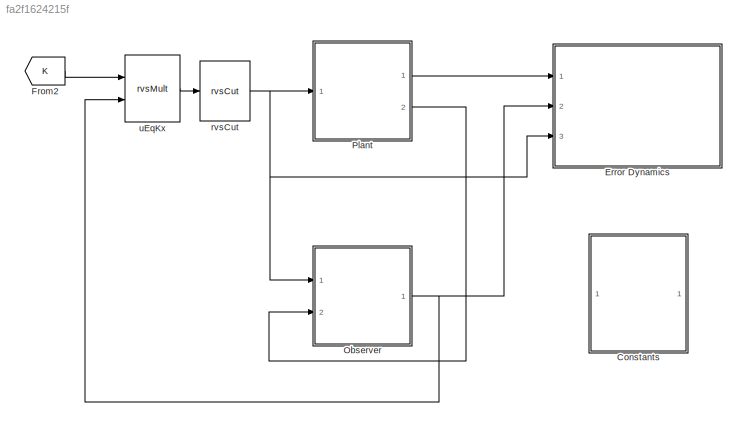
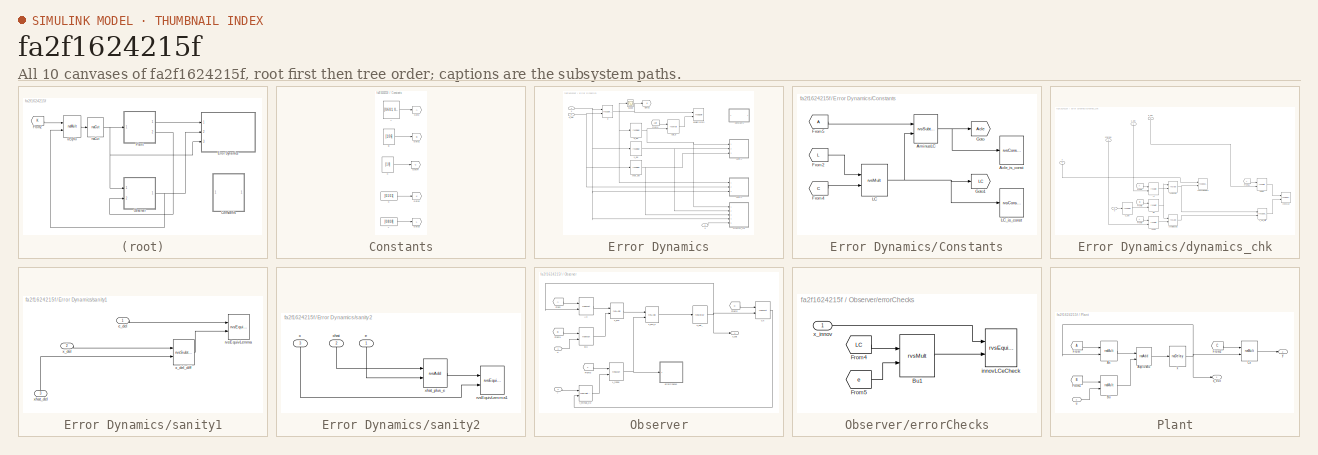
[diagram: thumbnail index - all 10 canvases of the model, root first then tree order]
MODEL slx_fa2f1624215f
KIND model
CONFIG AbsTol = auto
CONFIG FixedStep = auto
CONFIG MaxStep = auto
CONFIG MinStep = auto
CONFIG RelTol = 1e-3
CONFIG SampleTimeConstraint = Unconstrained
CONFIG Solver = FixedStepDiscrete
CONFIG SolverMode = Auto
CONFIG SolverName = FixedStepDiscrete
CONFIG StartTime = 0.0
CONFIG StopTime = 10.0
BLOCK [SubSystem] Constants
  Ports = []
  RequestExecContextInheritance = off
  Variant = off
BLOCK [Constant] Constants/A
  Value = [0.6 0.1; 0.0 0.5]
BLOCK [Constant] Constants/B
  Value = [1;0.6]
  VectorParams1D = off
BLOCK [Constant] Constants/C
  Value = [1 0]
  VectorParams1D = off
BLOCK [Goto] Constants/Goto
  TagVisibility = global
BLOCK [Goto] Constants/Goto1
  GotoTag = B
  TagVisibility = global
BLOCK [Goto] Constants/Goto2
  GotoTag = K
  TagVisibility = global
BLOCK [Goto] Constants/Goto3
  GotoTag = L
  TagVisibility = global
BLOCK [Goto] Constants/Goto4
  GotoTag = C
  TagVisibility = global
BLOCK [Constant] Constants/K
  Value = [0.1 0.1]
  VectorParams1D = off
BLOCK [Constant] Constants/L
  Value = [0.8;0.8]
  VectorParams1D = off
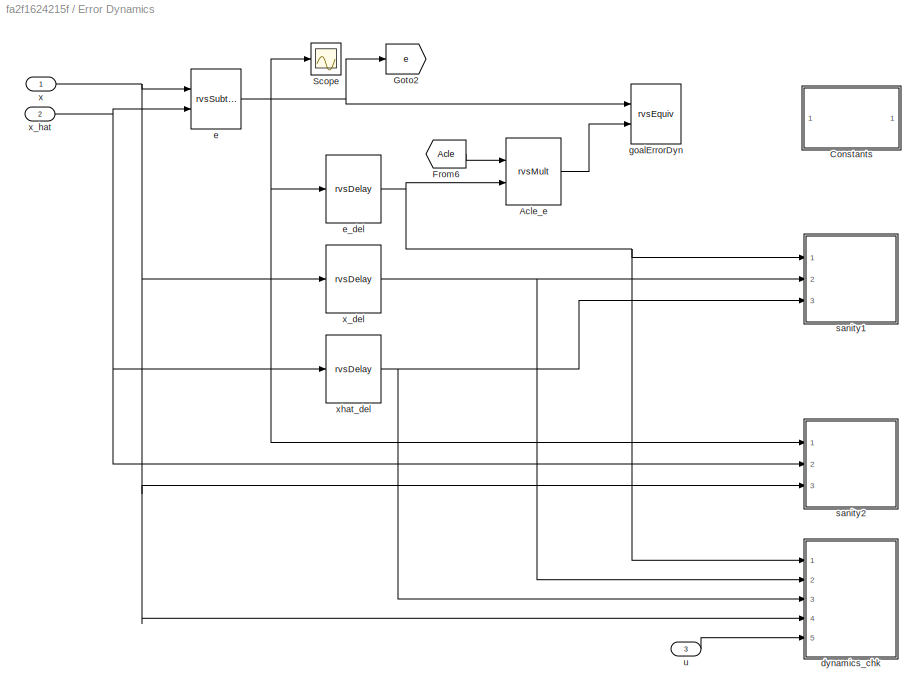
BLOCK [SubSystem] Error Dynamics
  Ports = [3]
  RequestExecContextInheritance = off
  Variant = off
BLOCK [Reference] Error Dynamics/Acle_e  REF=rvs/rvsMult  (lib defined in slx_4df59143a37a)
  Ports = [2, 1]
  SourceBlock = rvs/rvsMult
  SourceType = rvsMult
BLOCK [SubSystem] Error Dynamics/Constants
  Ports = []
  RequestExecContextInheritance = off
  Variant = off
BLOCK [Reference] Error Dynamics/Constants/Acle_is_const  REF=rvs/rvsConstant  (lib defined in slx_4df59143a37a)
  Ports = [1]
  SourceBlock = rvs/rvsConstant
  SourceType = rvsConstant
BLOCK [Reference] Error Dynamics/Constants/AminusLC  REF=rvs/rvsSubtract  (lib defined in slx_4df59143a37a)
  Ports = [2, 1]
  SourceBlock = rvs/rvsSubtract
  SourceType = rvsSubtract
BLOCK [From] Error Dynamics/Constants/From2
  GotoTag = L
  TagVisibility = global
BLOCK [From] Error Dynamics/Constants/From4
  GotoTag = C
  TagVisibility = global
BLOCK [From] Error Dynamics/Constants/From5
  TagVisibility = global
BLOCK [Goto] Error Dynamics/Constants/Goto
  GotoTag = Acle
  TagVisibility = global
BLOCK [Goto] Error Dynamics/Constants/Goto1
  GotoTag = LC
  TagVisibility = global
BLOCK [Reference] Error Dynamics/Constants/LC  REF=rvs/rvsMult  (lib defined in slx_4df59143a37a)
  Ports = [2, 1]
  SourceBlock = rvs/rvsMult
  SourceType = rvsMult
BLOCK [Reference] Error Dynamics/Constants/LC_is_const  REF=rvs/rvsConstant  (lib defined in slx_4df59143a37a)
  Ports = [1]
  SourceBlock = rvs/rvsConstant
  SourceType = rvsConstant
BLOCK [From] Error Dynamics/From6
  GotoTag = Acle
  TagVisibility = global
BLOCK [Goto] Error Dynamics/Goto2
  GotoTag = e
  TagVisibility = global
BLOCK [Scope] Error Dynamics/Scope
  Ports = [1]
  ScopeSpecificationString = Simulink.scopes.TimeScopeBlockCfg('CurrentConfiguration', extmgr.ConfigurationSet(extmgr.Configuration('Core','General UI',true),extmgr.Configuration('Core','Source UI',true),extmgr.Configuration('Sources','WiredSimulink',true),extmgr.Configuration('Visuals','Time Domain',true,'SerializedDisplays',{struct('MinYLimReal','-1.775','MaxYLimReal','0.975','YLabelReal','','MinYLimMag','0.00000','MaxYLimM...<+1344ch>
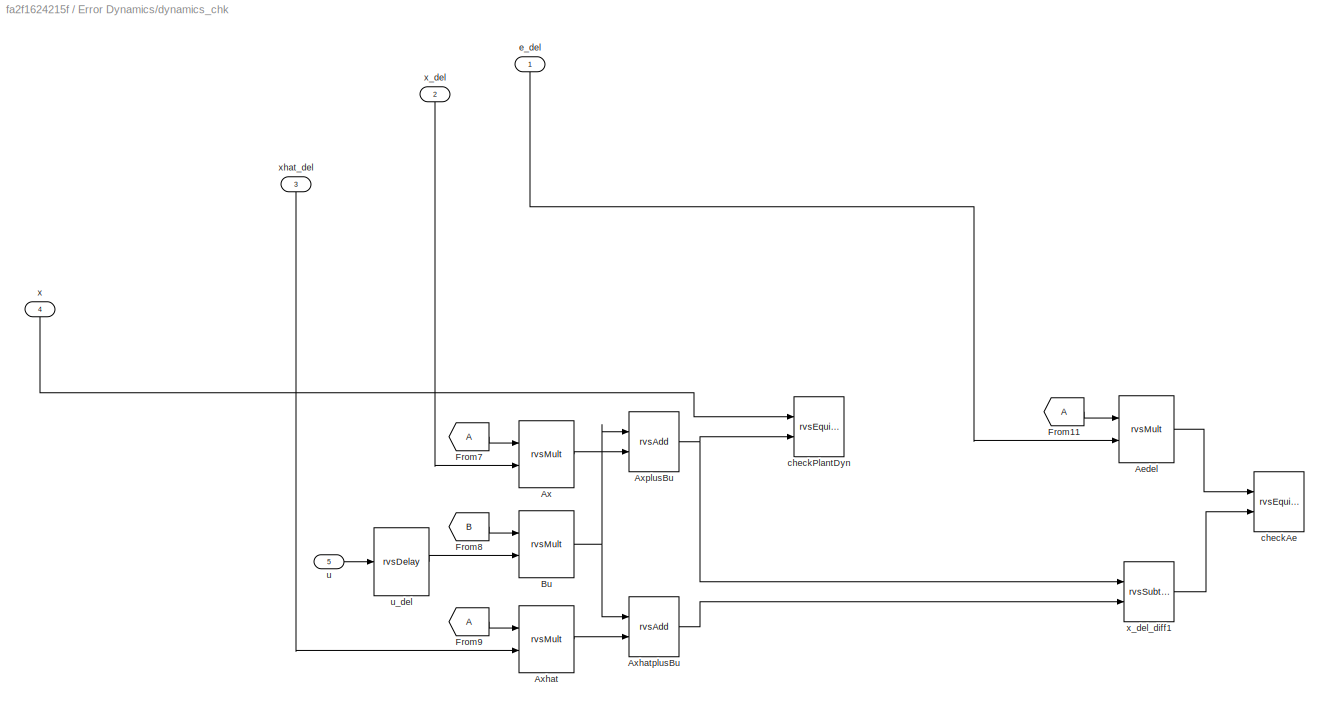
BLOCK [SubSystem] Error Dynamics/dynamics_chk
  Ports = [5]
  RequestExecContextInheritance = off
  Variant = off
BLOCK [Reference] Error Dynamics/dynamics_chk/Aedel  REF=rvs/rvsMult  (lib defined in slx_4df59143a37a)
  Ports = [2, 1]
  SourceBlock = rvs/rvsMult
  SourceType = rvsMult
BLOCK [Reference] Error Dynamics/dynamics_chk/Ax  REF=rvs/rvsMult  (lib defined in slx_4df59143a37a)
  Ports = [2, 1]
  SourceBlock = rvs/rvsMult
  SourceType = rvsMult
BLOCK [Reference] Error Dynamics/dynamics_chk/Axhat  REF=rvs/rvsMult  (lib defined in slx_4df59143a37a)
  Ports = [2, 1]
  SourceBlock = rvs/rvsMult
  SourceType = rvsMult
BLOCK [Reference] Error Dynamics/dynamics_chk/AxhatplusBu  REF=rvs/rvsAdd  (lib defined in slx_4df59143a37a)
  Ports = [2, 1]
  SourceBlock = rvs/rvsAdd
  SourceType = rvsAdd
BLOCK [Reference] Error Dynamics/dynamics_chk/AxplusBu  REF=rvs/rvsAdd  (lib defined in slx_4df59143a37a)
  Ports = [2, 1]
  SourceBlock = rvs/rvsAdd
  SourceType = rvsAdd
BLOCK [Reference] Error Dynamics/dynamics_chk/Bu  REF=rvs/rvsMult  (lib defined in slx_4df59143a37a)
  Ports = [2, 1]
  SourceBlock = rvs/rvsMult
  SourceType = rvsMult
BLOCK [From] Error Dynamics/dynamics_chk/From11
  TagVisibility = global
BLOCK [From] Error Dynamics/dynamics_chk/From7
  TagVisibility = global
BLOCK [From] Error Dynamics/dynamics_chk/From8
  GotoTag = B
  TagVisibility = global
BLOCK [From] Error Dynamics/dynamics_chk/From9
  TagVisibility = global
BLOCK [Reference] Error Dynamics/dynamics_chk/checkAe  REF=rvs/rvsEquivLemma  (lib defined in slx_4df59143a37a)
  Ports = [2]
  SourceBlock = rvs/rvsEquivLemma
  SourceType = rvsEquivLemma
BLOCK [Reference] Error Dynamics/dynamics_chk/checkPlantDyn  REF=rvs/rvsEquivLemma  (lib defined in slx_4df59143a37a)
  Ports = [2]
  SourceBlock = rvs/rvsEquivLemma
  SourceType = rvsEquivLemma
BLOCK [Inport] Error Dynamics/dynamics_chk/e_del
  IconDisplay = Port number
BLOCK [Inport] Error Dynamics/dynamics_chk/u
  IconDisplay = Port number
  Port = 5
BLOCK [Reference] Error Dynamics/dynamics_chk/u_del  REF=rvs/rvsDelay  (lib defined in slx_4df59143a37a)
  Ports = [1, 1]
  SourceBlock = rvs/rvsDelay
  SourceType = rvsDelay
BLOCK [Inport] Error Dynamics/dynamics_chk/x
  IconDisplay = Port number
  Port = 4
BLOCK [Inport] Error Dynamics/dynamics_chk/x_del
  IconDisplay = Port number
  Port = 2
BLOCK [Reference] Error Dynamics/dynamics_chk/x_del_diff1  REF=rvs/rvsSubtract  (lib defined in slx_4df59143a37a)
  Ports = [2, 1]
  SourceBlock = rvs/rvsSubtract
  SourceType = rvsSubtract
BLOCK [Inport] Error Dynamics/dynamics_chk/xhat_del
  IconDisplay = Port number
  Port = 3
BLOCK [Reference] Error Dynamics/e  REF=rvs/rvsSubtract  (lib defined in slx_4df59143a37a)
  Ports = [2, 1]
  SourceBlock = rvs/rvsSubtract
  SourceType = rvsSubtract
BLOCK [Reference] Error Dynamics/e_del  REF=rvs/rvsDelay  (lib defined in slx_4df59143a37a)
  Ports = [1, 1]
  SourceBlock = rvs/rvsDelay
  SourceType = rvsDelay
BLOCK [Reference] Error Dynamics/goalErrorDyn  REF=rvs/rvsEquiv  (lib defined in slx_4df59143a37a)
  Ports = [2]
  SourceBlock = rvs/rvsEquiv
  SourceType = rvsEquiv
BLOCK [SubSystem] Error Dynamics/sanity1
  Ports = [3]
  RequestExecContextInheritance = off
  Variant = off
BLOCK [Inport] Error Dynamics/sanity1/e_del
  IconDisplay = Port number
BLOCK [Reference] Error Dynamics/sanity1/rvsEquivLemma  REF=rvs/rvsEquivLemma  (lib defined in slx_4df59143a37a)
  Ports = [2]
  SourceBlock = rvs/rvsEquivLemma
  SourceType = rvsEquivLemma
BLOCK [Inport] Error Dynamics/sanity1/x_del
  IconDisplay = Port number
  Port = 2
BLOCK [Reference] Error Dynamics/sanity1/x_del_diff  REF=rvs/rvsSubtract  (lib defined in slx_4df59143a37a)
  Ports = [2, 1]
  SourceBlock = rvs/rvsSubtract
  SourceType = rvsSubtract
BLOCK [Inport] Error Dynamics/sanity1/xhat_del
  IconDisplay = Port number
  Port = 3
BLOCK [SubSystem] Error Dynamics/sanity2
  Ports = [3]
  RequestExecContextInheritance = off
  Variant = off
BLOCK [Inport] Error Dynamics/sanity2/e
  IconDisplay = Port number
BLOCK [Reference] Error Dynamics/sanity2/rvsEquivLemma1  REF=rvs/rvsEquivLemma  (lib defined in slx_4df59143a37a)
  Ports = [2]
  SourceBlock = rvs/rvsEquivLemma
  SourceType = rvsEquivLemma
BLOCK [Inport] Error Dynamics/sanity2/x
  IconDisplay = Port number
  Port = 3
BLOCK [Inport] Error Dynamics/sanity2/xhat
  IconDisplay = Port number
  Port = 2
BLOCK [Reference] Error Dynamics/sanity2/xhat_plus_e  REF=rvs/rvsAdd  (lib defined in slx_4df59143a37a)
  Ports = [2, 1]
  SourceBlock = rvs/rvsAdd
  SourceType = rvsAdd
BLOCK [Inport] Error Dynamics/u
  IconDisplay = Port number
  Port = 3
BLOCK [Inport] Error Dynamics/x
  IconDisplay = Port number
BLOCK [Reference] Error Dynamics/x_del  REF=rvs/rvsDelay  (lib defined in slx_4df59143a37a)
  Ports = [1, 1]
  SourceBlock = rvs/rvsDelay
  SourceType = rvsDelay
BLOCK [Inport] Error Dynamics/x_hat
  IconDisplay = Port number
  Port = 2
BLOCK [Reference] Error Dynamics/xhat_del  REF=rvs/rvsDelay  (lib defined in slx_4df59143a37a)
  Ports = [1, 1]
  SourceBlock = rvs/rvsDelay
  SourceType = rvsDelay
BLOCK [From] From2
  GotoTag = K
  TagVisibility = global
BLOCK [SubSystem] Observer
  Ports = [2, 1]
  RequestExecContextInheritance = off
  Variant = off
BLOCK [Reference] Observer/Ax  REF=rvs/rvsMult  (lib defined in slx_4df59143a37a)
  Ports = [2, 1]
  SourceBlock = rvs/rvsMult
  SourceType = rvsMult
BLOCK [Reference] Observer/Bu  REF=rvs/rvsMult  (lib defined in slx_4df59143a37a)
  Ports = [2, 1]
  SourceBlock = rvs/rvsMult
  SourceType = rvsMult
BLOCK [Reference] Observer/Cx  REF=rvs/rvsMult  (lib defined in slx_4df59143a37a)
  Ports = [2, 1]
  SourceBlock = rvs/rvsMult
  SourceType = rvsMult
BLOCK [From] Observer/From
  TagVisibility = global
BLOCK [From] Observer/From1
  GotoTag = B
  TagVisibility = global
BLOCK [From] Observer/From2
  GotoTag = C
  TagVisibility = global
BLOCK [From] Observer/From3
  GotoTag = L
  TagVisibility = global
BLOCK [Reference] Observer/L_innov  REF=rvs/rvsMult  (lib defined in slx_4df59143a37a)
  Ports = [2, 1]
  SourceBlock = rvs/rvsMult
  SourceType = rvsMult
BLOCK [SubSystem] Observer/errorChecks
  Ports = [1]
  RequestExecContextInheritance = off
  Variant = off
BLOCK [Reference] Observer/errorChecks/Bu1  REF=rvs/rvsMult  (lib defined in slx_4df59143a37a)
  Ports = [2, 1]
  SourceBlock = rvs/rvsMult
  SourceType = rvsMult
BLOCK [From] Observer/errorChecks/From4
  GotoTag = LC
  TagVisibility = global
BLOCK [From] Observer/errorChecks/From5
  GotoTag = e
  TagVisibility = global
BLOCK [Reference] Observer/errorChecks/innovLCeCheck  REF=rvs/rvsEquivLemma  (lib defined in slx_4df59143a37a)
  Ports = [2]
  SourceBlock = rvs/rvsEquivLemma
  SourceType = rvsEquivLemma
BLOCK [Inport] Observer/errorChecks/x_innov
  IconDisplay = Port number
BLOCK [Inport] Observer/u
  IconDisplay = Port number
BLOCK [Outport] Observer/x_hat
  IconDisplay = Port number
BLOCK [Reference] Observer/x_hat_  REF=rvs/rvsDelay  (lib defined in slx_4df59143a37a)
  Ports = [1, 1]
  SourceBlock = rvs/rvsDelay
  SourceType = rvsDelay
BLOCK [Reference] Observer/x_pre  REF=rvs/rvsAdd  (lib defined in slx_4df59143a37a)
  Ports = [2, 1]
  SourceBlock = rvs/rvsAdd
  SourceType = rvsAdd
BLOCK [Reference] Observer/x_pre_2  REF=rvs/rvsAdd  (lib defined in slx_4df59143a37a)
  Ports = [2, 1]
  SourceBlock = rvs/rvsAdd
  SourceType = rvsAdd
BLOCK [Inport] Observer/y
  IconDisplay = Port number
  Port = 2
BLOCK [Reference] Observer/y_minus_Cx  REF=rvs/rvsSubtract  (lib defined in slx_4df59143a37a)
  Ports = [2, 1]
  SourceBlock = rvs/rvsSubtract
  SourceType = rvsSubtract
BLOCK [SubSystem] Plant
  Ports = [1, 2]
  RequestExecContextInheritance = off
  Variant = off
BLOCK [Reference] Plant/Ax  REF=rvs/rvsMult  (lib defined in slx_4df59143a37a)
  Ports = [2, 1]
  SourceBlock = rvs/rvsMult
  SourceType = rvsMult
BLOCK [Reference] Plant/AxplusBu  REF=rvs/rvsAdd  (lib defined in slx_4df59143a37a)
  Ports = [2, 1]
  SourceBlock = rvs/rvsAdd
  SourceType = rvsAdd
BLOCK [Reference] Plant/Bu  REF=rvs/rvsMult  (lib defined in slx_4df59143a37a)
  Ports = [2, 1]
  SourceBlock = rvs/rvsMult
  SourceType = rvsMult
BLOCK [Reference] Plant/Cx  REF=rvs/rvsMult  (lib defined in slx_4df59143a37a)
  Ports = [2, 1]
  SourceBlock = rvs/rvsMult
  SourceType = rvsMult
BLOCK [From] Plant/From
  TagVisibility = global
BLOCK [From] Plant/From1
  GotoTag = B
  TagVisibility = global
BLOCK [From] Plant/From2
  GotoTag = C
  TagVisibility = global
BLOCK [Inport] Plant/u
  IconDisplay = Port number
BLOCK [Reference] Plant/x  REF=rvs/rvsDelay  (lib defined in slx_4df59143a37a)
  Ports = [1, 1]
  SourceBlock = rvs/rvsDelay
  SourceType = rvsDelay
BLOCK [Outport] Plant/x_out
  IconDisplay = Port number
BLOCK [Outport] Plant/y
  IconDisplay = Port number
  Port = 2
BLOCK [Reference] rvsCut  REF=rvs/rvsCut  (lib defined in slx_4df59143a37a)
  Ports = [1, 1]
  SourceBlock = rvs/rvsCut
  SourceType = rvsCut
BLOCK [Reference] uEqKx  REF=rvs/rvsMult  (lib defined in slx_4df59143a37a)
  Ports = [2, 1]
  SourceBlock = rvs/rvsMult
  SourceType = rvsMult
LINE Constants/A:1 -> Constants/Goto:1
LINE Constants/B:1 -> Constants/Goto1:1
LINE Constants/C:1 -> Constants/Goto4:1
LINE Constants/K:1 -> Constants/Goto2:1
LINE Constants/L:1 -> Constants/Goto3:1
LINE Error Dynamics/Acle_e:1 -> Error Dynamics/goalErrorDyn:2
NET Error Dynamics/Constants/AminusLC:1 -> Error Dynamics/Constants/Acle_is_const:1, Error Dynamics/Constants/Goto:1
LINE Error Dynamics/Constants/From2:1 -> Error Dynamics/Constants/LC:1
LINE Error Dynamics/Constants/From4:1 -> Error Dynamics/Constants/LC:2
LINE Error Dynamics/Constants/From5:1 -> Error Dynamics/Constants/AminusLC:1
NET Error Dynamics/Constants/LC:1 -> Error Dynamics/Constants/AminusLC:2, Error Dynamics/Constants/Goto1:1, Error Dynamics/Constants/LC_is_const:1
LINE Error Dynamics/From6:1 -> Error Dynamics/Acle_e:1
LINE Error Dynamics/dynamics_chk/Aedel:1 -> Error Dynamics/dynamics_chk/checkAe:1
LINE Error Dynamics/dynamics_chk/Ax:1 -> Error Dynamics/dynamics_chk/AxplusBu:2
LINE Error Dynamics/dynamics_chk/Axhat:1 -> Error Dynamics/dynamics_chk/AxhatplusBu:2
LINE Error Dynamics/dynamics_chk/AxhatplusBu:1 -> Error Dynamics/dynamics_chk/x_del_diff1:2
NET Error Dynamics/dynamics_chk/AxplusBu:1 -> Error Dynamics/dynamics_chk/checkPlantDyn:2, Error Dynamics/dynamics_chk/x_del_diff1:1
NET Error Dynamics/dynamics_chk/Bu:1 -> Error Dynamics/dynamics_chk/AxhatplusBu:1, Error Dynamics/dynamics_chk/AxplusBu:1
LINE Error Dynamics/dynamics_chk/From11:1 -> Error Dynamics/dynamics_chk/Aedel:1
LINE Error Dynamics/dynamics_chk/From7:1 -> Error Dynamics/dynamics_chk/Ax:1
LINE Error Dynamics/dynamics_chk/From8:1 -> Error Dynamics/dynamics_chk/Bu:1
LINE Error Dynamics/dynamics_chk/From9:1 -> Error Dynamics/dynamics_chk/Axhat:1
LINE Error Dynamics/dynamics_chk/e_del:1 -> Error Dynamics/dynamics_chk/Aedel:2
LINE Error Dynamics/dynamics_chk/u:1 -> Error Dynamics/dynamics_chk/u_del:1
LINE Error Dynamics/dynamics_chk/u_del:1 -> Error Dynamics/dynamics_chk/Bu:2
LINE Error Dynamics/dynamics_chk/x:1 -> Error Dynamics/dynamics_chk/checkPlantDyn:1
LINE Error Dynamics/dynamics_chk/x_del:1 -> Error Dynamics/dynamics_chk/Ax:2
LINE Error Dynamics/dynamics_chk/x_del_diff1:1 -> Error Dynamics/dynamics_chk/checkAe:2
LINE Error Dynamics/dynamics_chk/xhat_del:1 -> Error Dynamics/dynamics_chk/Axhat:2
NET Error Dynamics/e:1 -> Error Dynamics/Goto2:1, Error Dynamics/Scope:1, Error Dynamics/e_del:1, Error Dynamics/goalErrorDyn:1, Error Dynamics/sanity2:1
NET Error Dynamics/e_del:1 -> Error Dynamics/Acle_e:2, Error Dynamics/dynamics_chk:1, Error Dynamics/sanity1:1
LINE Error Dynamics/sanity1/e_del:1 -> Error Dynamics/sanity1/rvsEquivLemma:1
LINE Error Dynamics/sanity1/x_del:1 -> Error Dynamics/sanity1/x_del_diff:1
LINE Error Dynamics/sanity1/x_del_diff:1 -> Error Dynamics/sanity1/rvsEquivLemma:2
LINE Error Dynamics/sanity1/xhat_del:1 -> Error Dynamics/sanity1/x_del_diff:2
LINE Error Dynamics/sanity2/e:1 -> Error Dynamics/sanity2/xhat_plus_e:2
LINE Error Dynamics/sanity2/x:1 -> Error Dynamics/sanity2/rvsEquivLemma1:2
LINE Error Dynamics/sanity2/xhat:1 -> Error Dynamics/sanity2/xhat_plus_e:1
LINE Error Dynamics/sanity2/xhat_plus_e:1 -> Error Dynamics/sanity2/rvsEquivLemma1:1
LINE Error Dynamics/u:1 -> Error Dynamics/dynamics_chk:5
NET Error Dynamics/x:1 -> Error Dynamics/dynamics_chk:4, Error Dynamics/e:1, Error Dynamics/sanity2:3, Error Dynamics/x_del:1
NET Error Dynamics/x_del:1 -> Error Dynamics/dynamics_chk:2, Error Dynamics/sanity1:2
NET Error Dynamics/x_hat:1 -> Error Dynamics/e:2, Error Dynamics/sanity2:2, Error Dynamics/xhat_del:1
NET Error Dynamics/xhat_del:1 -> Error Dynamics/dynamics_chk:3, Error Dynamics/sanity1:3
LINE From2:1 -> uEqKx:1
LINE Observer/Ax:1 -> Observer/x_pre:1
LINE Observer/Bu:1 -> Observer/x_pre:2
LINE Observer/Cx:1 -> Observer/y_minus_Cx:2
LINE Observer/From1:1 -> Observer/Bu:1
LINE Observer/From2:1 -> Observer/Cx:1
LINE Observer/From3:1 -> Observer/L_innov:1
LINE Observer/From:1 -> Observer/Ax:1
NET Observer/L_innov:1 -> Observer/errorChecks:1, Observer/x_pre_2:2
LINE Observer/errorChecks/Bu1:1 -> Observer/errorChecks/innovLCeCheck:2
LINE Observer/errorChecks/From4:1 -> Observer/errorChecks/Bu1:1
LINE Observer/errorChecks/From5:1 -> Observer/errorChecks/Bu1:2
LINE Observer/errorChecks/x_innov:1 -> Observer/errorChecks/innovLCeCheck:1
LINE Observer/u:1 -> Observer/Bu:2
NET Observer/x_hat_:1 -> Observer/Ax:2, Observer/Cx:2, Observer/x_hat:1
LINE Observer/x_pre:1 -> Observer/x_pre_2:1
LINE Observer/x_pre_2:1 -> Observer/x_hat_:1
LINE Observer/y:1 -> Observer/y_minus_Cx:1
LINE Observer/y_minus_Cx:1 -> Observer/L_innov:2
NET Observer:1 -> Error Dynamics:2, uEqKx:2
LINE Plant/Ax:1 -> Plant/AxplusBu:1
LINE Plant/AxplusBu:1 -> Plant/x:1
LINE Plant/Bu:1 -> Plant/AxplusBu:2
LINE Plant/Cx:1 -> Plant/y:1
LINE Plant/From1:1 -> Plant/Bu:1
LINE Plant/From2:1 -> Plant/Cx:1
LINE Plant/From:1 -> Plant/Ax:1
LINE Plant/u:1 -> Plant/Bu:2
NET Plant/x:1 -> Plant/Ax:2, Plant/Cx:2, Plant/x_out:1
LINE Plant:1 -> Error Dynamics:1
LINE Plant:2 -> Observer:2
NET rvsCut:1 -> Error Dynamics:3, Observer:1, Plant:1
LINE uEqKx:1 -> rvsCut:1
note: NET lines group one-source signal fan-out (src -> all destinations, sorted); 1:1 wires keep LINE
